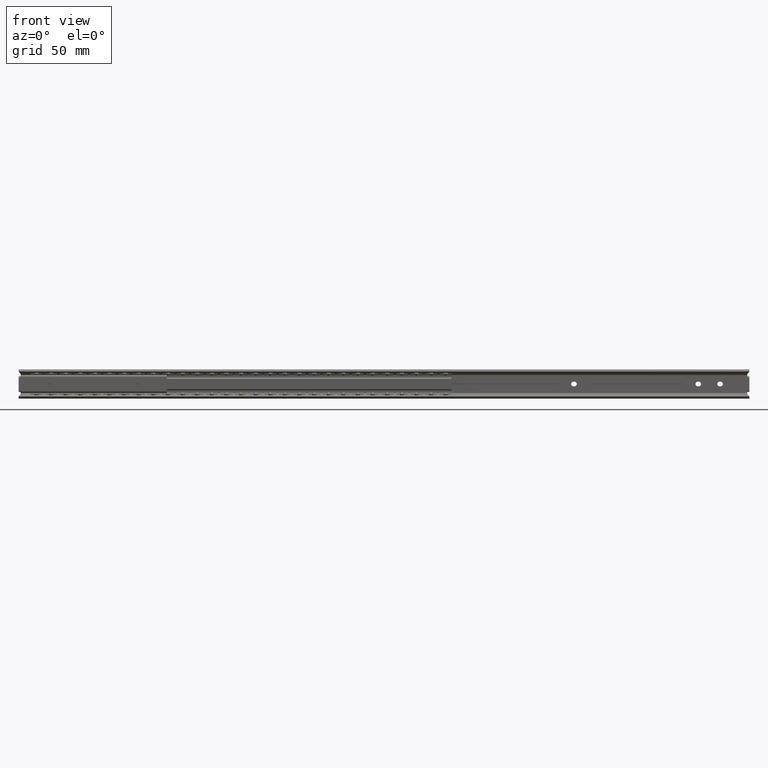
[diagram: clean part render]
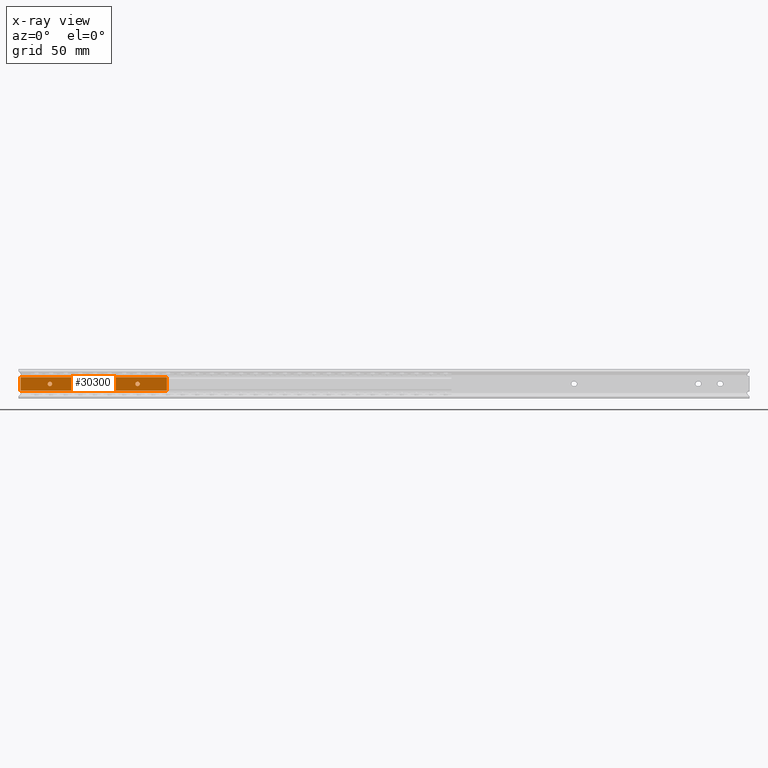
[diagram: x-ray — body ghosted, one internal face saturated and labeled with its STEP entity id]
A machine part, front view, then the same camera in x-ray: the body is ghosted and one INTERNAL B-rep face — a face not visible from any outside direction — is saturated and labeled: STEP entity #30300.
In plain terms, the highlighted face is a freeform B-spline surface patch.
Its self-contained STEP definition (entity closure, byte-faithful):
#29562=CARTESIAN_POINT('',(79.910485712514244,-6.800000000000001,0.177051369313497));
#29563=VERTEX_POINT('',#29562);
#29564=CARTESIAN_POINT('',(81.400000000000006,-6.800000000000000,-1.500000000000000));
#29565=VERTEX_POINT('',#29564);
#29566=CARTESIAN_POINT('',(79.910485712514244,-6.800000000000002,0.177051369313497));
#29567=CARTESIAN_POINT('',(79.900000000000006,-6.800000000000000,0.088836196989418));
#29568=CARTESIAN_POINT('',(79.900000000000006,-6.800000000000000,0.0));
#29569=CARTESIAN_POINT('',(79.900000000000006,-6.800000000000002,-1.500000000000000));
#29570=CARTESIAN_POINT('',(81.400000000000006,-6.800000000000000,-1.500000000000000));
#29578=(BOUNDED_CURVE()B_SPLINE_CURVE(2,(#29566,#29567,#29568,#29569,#29570),.UNSPECIFIED.,.F.,.U.)B_SPLINE_CURVE_WITH_KNOTS((3,2,3),(0.729562469583424,0.750000000000000,1.0),.UNSPECIFIED.)CURVE()GEOMETRIC_REPRESENTATION_ITEM()RATIONAL_B_SPLINE_CURVE((0.956026746480573,0.976055943726765,1.0,0.707106781186548,1.0))REPRESENTATION_ITEM(''));
#29579=EDGE_CURVE('',#29563,#29565,#29578,.T.);
#29620=CARTESIAN_POINT('',(82.897202197279398,-6.800000000000000,-0.091572815080291));
#29621=VERTEX_POINT('',#29620);
#29627=CARTESIAN_POINT('',(81.400000000000006,-6.800000000000000,-1.500000000000000));
#29628=CARTESIAN_POINT('',(82.811059089447070,-6.800000000000001,-1.500000000000000));
#29629=CARTESIAN_POINT('',(82.897202197279398,-6.800000000000000,-0.091572815080291));
#29637=(BOUNDED_CURVE()B_SPLINE_CURVE(2,(#29627,#29628,#29629),.UNSPECIFIED.,.F.,.U.)B_SPLINE_CURVE_WITH_KNOTS((3,3),(0.0,0.239332960910182),.UNSPECIFIED.)CURVE()GEOMETRIC_REPRESENTATION_ITEM()RATIONAL_B_SPLINE_CURVE((1.0,0.719603994843450,0.976072038818931))REPRESENTATION_ITEM(''));
#29638=EDGE_CURVE('',#29565,#29621,#29637,.T.);
#29661=CARTESIAN_POINT('',(81.400000000000006,-6.800000000000000,1.500000000000000));
#29662=VERTEX_POINT('',#29661);
#29663=CARTESIAN_POINT('',(81.400000000000006,-6.800000000000000,1.500000000000000));
#29664=CARTESIAN_POINT('',(80.067738242289067,-6.800000000000001,1.500000000000000));
#29665=CARTESIAN_POINT('',(79.910485712514244,-6.800000000000001,0.177051369313497));
#29673=(BOUNDED_CURVE()B_SPLINE_CURVE(2,(#29663,#29664,#29665),.UNSPECIFIED.,.F.,.U.)B_SPLINE_CURVE_WITH_KNOTS((3,3),(0.500000000000000,0.729562469583424),.UNSPECIFIED.)CURVE()GEOMETRIC_REPRESENTATION_ITEM()RATIONAL_B_SPLINE_CURVE((1.0,0.731050837459783,0.956026746480574))REPRESENTATION_ITEM(''));
#29674=EDGE_CURVE('',#29662,#29563,#29673,.T.);
#29676=CARTESIAN_POINT('',(82.897202197279398,-6.800000000000000,-0.091572815080291));
#29677=CARTESIAN_POINT('',(82.900000000000020,-6.800000000000001,-0.045829150742090));
#29678=CARTESIAN_POINT('',(82.900000000000006,-6.800000000000000,0.0));
#29679=CARTESIAN_POINT('',(82.900000000000006,-6.800000000000002,1.500000000000000));
#29680=CARTESIAN_POINT('',(81.400000000000006,-6.800000000000000,1.500000000000000));
#29688=(BOUNDED_CURVE()B_SPLINE_CURVE(2,(#29676,#29677,#29678,#29679,#29680),.UNSPECIFIED.,.F.,.U.)B_SPLINE_CURVE_WITH_KNOTS((3,2,3),(0.239332960910182,0.250000000000000,0.500000000000000),.UNSPECIFIED.)CURVE()GEOMETRIC_REPRESENTATION_ITEM()RATIONAL_B_SPLINE_CURVE((0.976072038818931,0.987502786343098,1.0,0.707106781186548,1.0))REPRESENTATION_ITEM(''));
#29689=EDGE_CURVE('',#29621,#29662,#29688,.T.);
#29748=CARTESIAN_POINT('',(19.910485712514241,-6.800000000000001,0.177051369313497));
#29749=VERTEX_POINT('',#29748);
#29750=CARTESIAN_POINT('',(21.399999999999999,-6.800000000000000,-1.500000000000000));
#29751=VERTEX_POINT('',#29750);
#29752=CARTESIAN_POINT('',(19.910485712514237,-6.800000000000002,0.177051369313497));
#29753=CARTESIAN_POINT('',(19.899999999999999,-6.800000000000000,0.088836196989418));
#29754=CARTESIAN_POINT('',(19.899999999999999,-6.800000000000000,0.0));
#29755=CARTESIAN_POINT('',(19.900000000000006,-6.800000000000002,-1.500000000000000));
#29756=CARTESIAN_POINT('',(21.399999999999999,-6.800000000000000,-1.500000000000000));
#29764=(BOUNDED_CURVE()B_SPLINE_CURVE(2,(#29752,#29753,#29754,#29755,#29756),.UNSPECIFIED.,.F.,.U.)B_SPLINE_CURVE_WITH_KNOTS((3,2,3),(0.729562469583424,0.750000000000000,1.0),.UNSPECIFIED.)CURVE()GEOMETRIC_REPRESENTATION_ITEM()RATIONAL_B_SPLINE_CURVE((0.956026746480573,0.976055943726765,1.0,0.707106781186548,1.0))REPRESENTATION_ITEM(''));
#29765=EDGE_CURVE('',#29749,#29751,#29764,.T.);
#29806=CARTESIAN_POINT('',(22.897202197279402,-6.800000000000000,-0.091572815080292));
#29807=VERTEX_POINT('',#29806);
#29813=CARTESIAN_POINT('',(21.399999999999999,-6.800000000000000,-1.500000000000000));
#29814=CARTESIAN_POINT('',(22.811059089447056,-6.800000000000002,-1.500000000000000));
#29815=CARTESIAN_POINT('',(22.897202197279398,-6.800000000000000,-0.091572815080292));
#29823=(BOUNDED_CURVE()B_SPLINE_CURVE(2,(#29813,#29814,#29815),.UNSPECIFIED.,.F.,.U.)B_SPLINE_CURVE_WITH_KNOTS((3,3),(0.0,0.239332960910182),.UNSPECIFIED.)CURVE()GEOMETRIC_REPRESENTATION_ITEM()RATIONAL_B_SPLINE_CURVE((1.0,0.719603994843450,0.976072038818931))REPRESENTATION_ITEM(''));
#29824=EDGE_CURVE('',#29751,#29807,#29823,.T.);
#29847=CARTESIAN_POINT('',(21.399999999999999,-6.800000000000000,1.500000000000000));
#29848=VERTEX_POINT('',#29847);
#29849=CARTESIAN_POINT('',(21.399999999999999,-6.800000000000000,1.500000000000000));
#29850=CARTESIAN_POINT('',(20.067738242289071,-6.800000000000001,1.500000000000000));
#29851=CARTESIAN_POINT('',(19.910485712514234,-6.800000000000001,0.177051369313497));
#29859=(BOUNDED_CURVE()B_SPLINE_CURVE(2,(#29849,#29850,#29851),.UNSPECIFIED.,.F.,.U.)B_SPLINE_CURVE_WITH_KNOTS((3,3),(0.500000000000000,0.729562469583424),.UNSPECIFIED.)CURVE()GEOMETRIC_REPRESENTATION_ITEM()RATIONAL_B_SPLINE_CURVE((1.0,0.731050837459783,0.956026746480574))REPRESENTATION_ITEM(''));
#29860=EDGE_CURVE('',#29848,#29749,#29859,.T.);
#29862=CARTESIAN_POINT('',(22.897202197279402,-6.800000000000000,-0.091572815080292));
#29863=CARTESIAN_POINT('',(22.899999999999995,-6.800000000000000,-0.045829150742091));
#29864=CARTESIAN_POINT('',(22.899999999999999,-6.800000000000000,0.0));
#29865=CARTESIAN_POINT('',(22.899999999999999,-6.800000000000002,1.500000000000000));
#29866=CARTESIAN_POINT('',(21.399999999999999,-6.800000000000000,1.500000000000000));
#29874=(BOUNDED_CURVE()B_SPLINE_CURVE(2,(#29862,#29863,#29864,#29865,#29866),.UNSPECIFIED.,.F.,.U.)B_SPLINE_CURVE_WITH_KNOTS((3,2,3),(0.239332960910182,0.250000000000000,0.500000000000000),.UNSPECIFIED.)CURVE()GEOMETRIC_REPRESENTATION_ITEM()RATIONAL_B_SPLINE_CURVE((0.976072038818931,0.987502786343098,1.0,0.707106781186548,1.0))REPRESENTATION_ITEM(''));
#29875=EDGE_CURVE('',#29807,#29848,#29874,.T.);
#29934=CARTESIAN_POINT('',(1.400000000000068,-6.800000000000000,4.641039999999910));
#29935=VERTEX_POINT('',#29934);
#29951=CARTESIAN_POINT('',(1.400000000000068,-6.800000000000000,-4.641040000000000));
#29952=VERTEX_POINT('',#29951);
#29953=CARTESIAN_POINT('',(1.400000000000068,-6.800000000000000,-4.641040000000000));
#29954=CARTESIAN_POINT('',(1.400000000000068,-6.800000000000000,4.641039999999910));
#29955=QUASI_UNIFORM_CURVE('',1,(#29953,#29954),.UNSPECIFIED.,.F.,.U.);
#29956=EDGE_CURVE('',#29952,#29935,#29955,.T.);
#30198=CARTESIAN_POINT('',(101.400000000000010,-6.800000000000000,-4.641040000000000));
#30199=VERTEX_POINT('',#30198);
#30215=CARTESIAN_POINT('',(101.400000000000010,-6.800000000000000,4.641039999999910));
#30216=VERTEX_POINT('',#30215);
#30217=CARTESIAN_POINT('',(101.400000000000010,-6.800000000000000,-4.641040000000000));
#30218=CARTESIAN_POINT('',(101.400000000000010,-6.800000000000000,4.641039999999910));
#30219=QUASI_UNIFORM_CURVE('',1,(#30217,#30218),.UNSPECIFIED.,.F.,.U.);
#30220=EDGE_CURVE('',#30199,#30216,#30219,.T.);
#30265=CARTESIAN_POINT('',(101.400000000000010,-6.800000000000000,4.641039999999910));
#30266=CARTESIAN_POINT('',(1.400000000000068,-6.800000000000000,4.641039999999910));
#30267=QUASI_UNIFORM_CURVE('',1,(#30265,#30266),.UNSPECIFIED.,.F.,.U.);
#30268=EDGE_CURVE('',#30216,#29935,#30267,.T.);
#30273=CARTESIAN_POINT('',(-3.594999806180518,-6.800000000000000,5.104679757713797));
#30274=CARTESIAN_POINT('',(-3.594999806180518,-6.800000000000000,-5.104679425760839));
#30275=CARTESIAN_POINT('',(106.395002488389590,-6.800000000000000,5.104679757713797));
#30276=CARTESIAN_POINT('',(106.395002488389590,-6.800000000000000,-5.104679425760839));
#30277=B_SPLINE_SURFACE_WITH_KNOTS('',1,1,((#30273,#30275),(#30274,#30276)),.UNSPECIFIED.,.F.,.F.,.U.,(2,2),(2,2),(0.0,10.209359183474641),(0.0,109.990002294570100),.UNSPECIFIED.);
#30278=ORIENTED_EDGE('',*,*,#29956,.T.);
#30279=ORIENTED_EDGE('',*,*,#30268,.F.);
#30280=ORIENTED_EDGE('',*,*,#30220,.F.);
#30281=CARTESIAN_POINT('',(101.400000000000010,-6.800000000000000,-4.641040000000000));
#30282=CARTESIAN_POINT('',(1.400000000000068,-6.800000000000000,-4.641040000000000));
#30283=QUASI_UNIFORM_CURVE('',1,(#30281,#30282),.UNSPECIFIED.,.F.,.U.);
#30284=EDGE_CURVE('',#30199,#29952,#30283,.T.);
#30285=ORIENTED_EDGE('',*,*,#30284,.T.);
#30286=EDGE_LOOP('',(#30278,#30279,#30280,#30285));
#30287=FACE_OUTER_BOUND('',#30286,.T.);
#30288=ORIENTED_EDGE('',*,*,#29824,.T.);
#30289=ORIENTED_EDGE('',*,*,#29875,.T.);
#30290=ORIENTED_EDGE('',*,*,#29860,.T.);
#30291=ORIENTED_EDGE('',*,*,#29765,.T.);
#30292=EDGE_LOOP('',(#30288,#30289,#30290,#30291));
#30293=FACE_BOUND('',#30292,.T.);
#30294=ORIENTED_EDGE('',*,*,#29638,.T.);
#30295=ORIENTED_EDGE('',*,*,#29689,.T.);
#30296=ORIENTED_EDGE('',*,*,#29674,.T.);
#30297=ORIENTED_EDGE('',*,*,#29579,.T.);
#30298=EDGE_LOOP('',(#30294,#30295,#30296,#30297));
#30299=FACE_BOUND('',#30298,.T.);
#30300=ADVANCED_FACE('',(#30287,#30293,#30299),#30277,.F.);